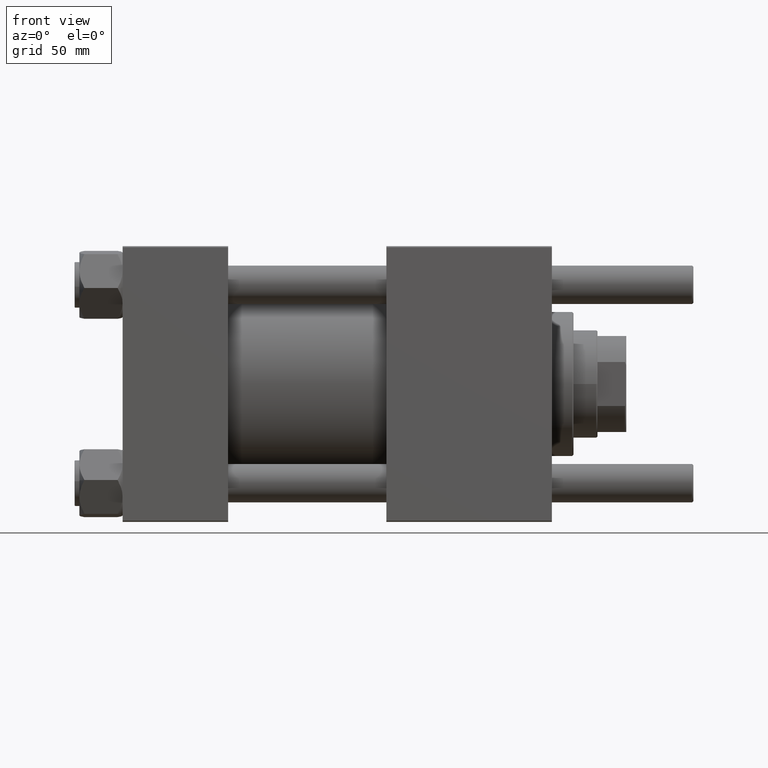
[diagram: clean part render]
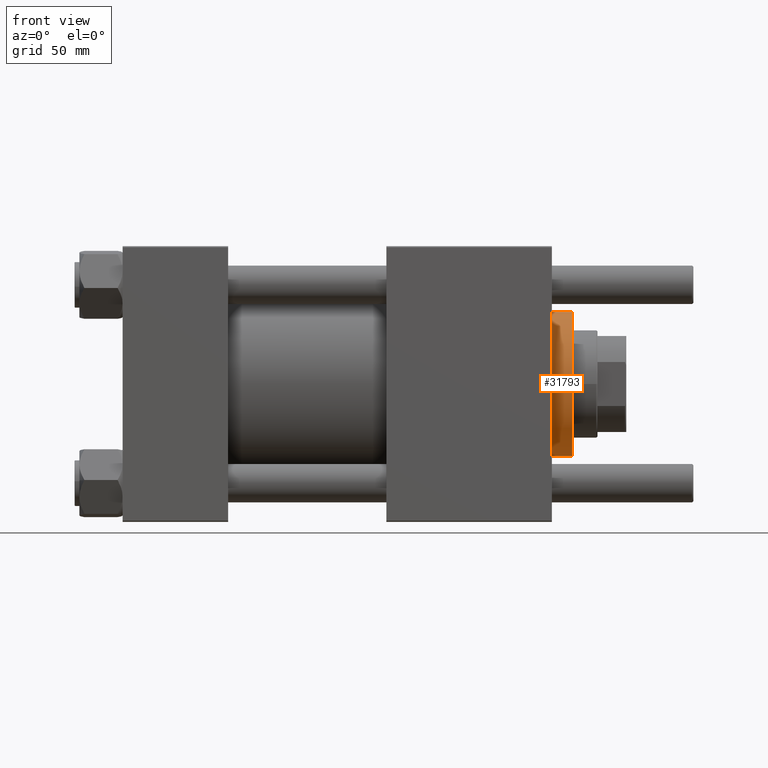
[diagram: same view with one face highlighted and labeled with its STEP entity id]
A machine part, front view. The second image highlights one B-rep face of the part: STEP entity #31793.
In plain terms, the highlighted cylindrical surface (partial cylindrical patch) has radius 30 mm, axis along (-1, -0, 0).
Its self-contained STEP definition (entity closure, byte-faithful):
#12 = VECTOR ( 'NONE', #17590, 1000.000000000000000 ) ;
#3285 = VERTEX_POINT ( 'NONE', #30114 ) ;
#3636 = VERTEX_POINT ( 'NONE', #48083 ) ;
#3741 = CARTESIAN_POINT ( 'NONE',  ( -30.00000000000000000, 0.000000000000000000, 37.69999999999999574 ) ) ;
#7729 = CIRCLE ( 'NONE', #40043, 30.00000000000000000 ) ;
#8081 = LINE ( 'NONE', #3741, #33536 ) ;
#11190 = DIRECTION ( 'NONE',  ( 1.000000000000000000, 0.000000000000000000, 0.000000000000000000 ) ) ;
#13449 = ORIENTED_EDGE ( 'NONE', *, *, #43650, .T. ) ;
#13465 = VERTEX_POINT ( 'NONE', #37945 ) ;
#17590 = DIRECTION ( 'NONE',  ( -0.000000000000000000, -0.000000000000000000, -1.000000000000000000 ) ) ;
#20711 = CARTESIAN_POINT ( 'NONE',  ( 0.000000000000000000, 0.000000000000000000, 28.69999999999999929 ) ) ;
#21366 = DIRECTION ( 'NONE',  ( -0.000000000000000000, -0.000000000000000000, -1.000000000000000000 ) ) ;
#23091 = ORIENTED_EDGE ( 'NONE', *, *, #38237, .T. ) ;
#23997 = DIRECTION ( 'NONE',  ( -0.000000000000000000, -0.000000000000000000, -1.000000000000000000 ) ) ;
#24660 = DIRECTION ( 'NONE',  ( 1.000000000000000000, 0.000000000000000000, 0.000000000000000000 ) ) ;
#25535 = EDGE_CURVE ( 'NONE', #3636, #39450, #54527, .T. ) ;
#25971 = LINE ( 'NONE', #43603, #12 ) ;
#27804 = EDGE_CURVE ( 'NONE', #3636, #3285, #25971, .T. ) ;
#30114 = CARTESIAN_POINT ( 'NONE',  ( 30.00000000000000000, 3.673940397442059178E-15, 28.69999999999999929 ) ) ;
#31793 = ADVANCED_FACE ( 'NONE', ( #54350 ), #32687, .T. ) ;
#32405 = DIRECTION ( 'NONE',  ( -1.000000000000000000, 0.000000000000000000, 0.000000000000000000 ) ) ;
#32687 = CYLINDRICAL_SURFACE ( 'NONE', #52741, 30.00000000000000000 ) ;
#33168 = DIRECTION ( 'NONE',  ( 0.000000000000000000, 0.000000000000000000, 1.000000000000000000 ) ) ;
#33536 = VECTOR ( 'NONE', #21366, 1000.000000000000000 ) ;
#33907 = CARTESIAN_POINT ( 'NONE',  ( 0.000000000000000000, 0.000000000000000000, 37.20000000000000284 ) ) ;
#34612 = ORIENTED_EDGE ( 'NONE', *, *, #25535, .T. ) ;
#35832 = ORIENTED_EDGE ( 'NONE', *, *, #27804, .F. ) ;
#37945 = CARTESIAN_POINT ( 'NONE',  ( -30.00000000000000000, 0.000000000000000000, 28.69999999999999929 ) ) ;
#37967 = DIRECTION ( 'NONE',  ( 0.000000000000000000, 0.000000000000000000, -1.000000000000000000 ) ) ;
#38237 = EDGE_CURVE ( 'NONE', #39450, #13465, #8081, .T. ) ;
#39450 = VERTEX_POINT ( 'NONE', #43855 ) ;
#40043 = AXIS2_PLACEMENT_3D ( 'NONE', #20711, #33168, #11190 ) ;
#43484 = AXIS2_PLACEMENT_3D ( 'NONE', #33907, #37967, #24660 ) ;
#43603 = CARTESIAN_POINT ( 'NONE',  ( 30.00000000000000000, 3.673940397442059178E-15, 37.69999999999999574 ) ) ;
#43650 = EDGE_CURVE ( 'NONE', #13465, #3285, #7729, .T. ) ;
#43855 = CARTESIAN_POINT ( 'NONE',  ( -30.00000000000000000, 0.000000000000000000, 37.20000000000000284 ) ) ;
#45973 = CARTESIAN_POINT ( 'NONE',  ( 0.000000000000000000, 0.000000000000000000, 37.69999999999999574 ) ) ;
#48083 = CARTESIAN_POINT ( 'NONE',  ( 30.00000000000000000, 3.673940397442059178E-15, 37.20000000000000284 ) ) ;
#52741 = AXIS2_PLACEMENT_3D ( 'NONE', #45973, #23997, #32405 ) ;
#54350 = FACE_OUTER_BOUND ( 'NONE', #55948, .T. ) ;
#54527 = CIRCLE ( 'NONE', #43484, 30.00000000000000000 ) ;
#55948 = EDGE_LOOP ( 'NONE', ( #35832, #34612, #23091, #13449 ) ) ;